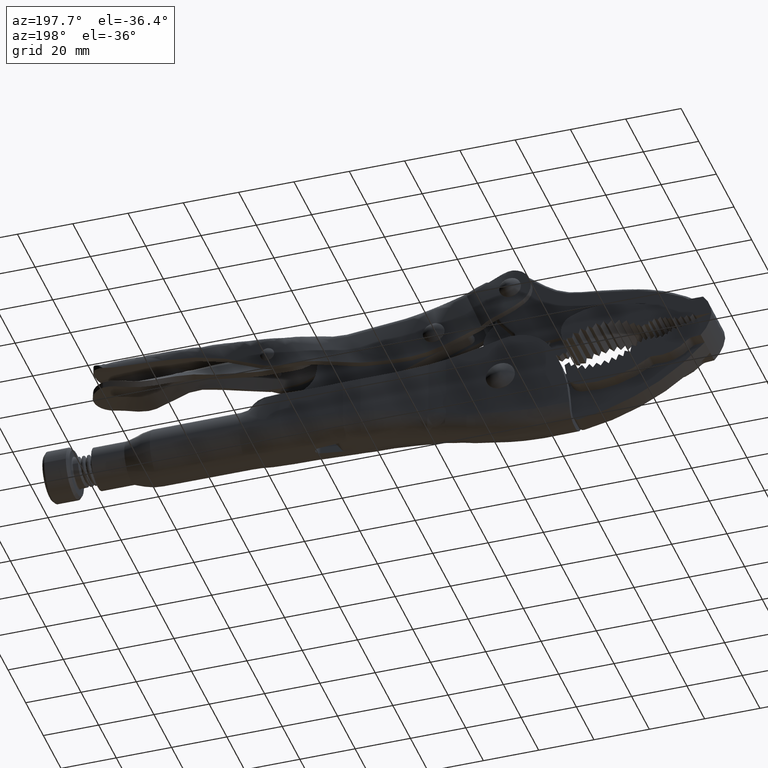
[diagram: clean part render]
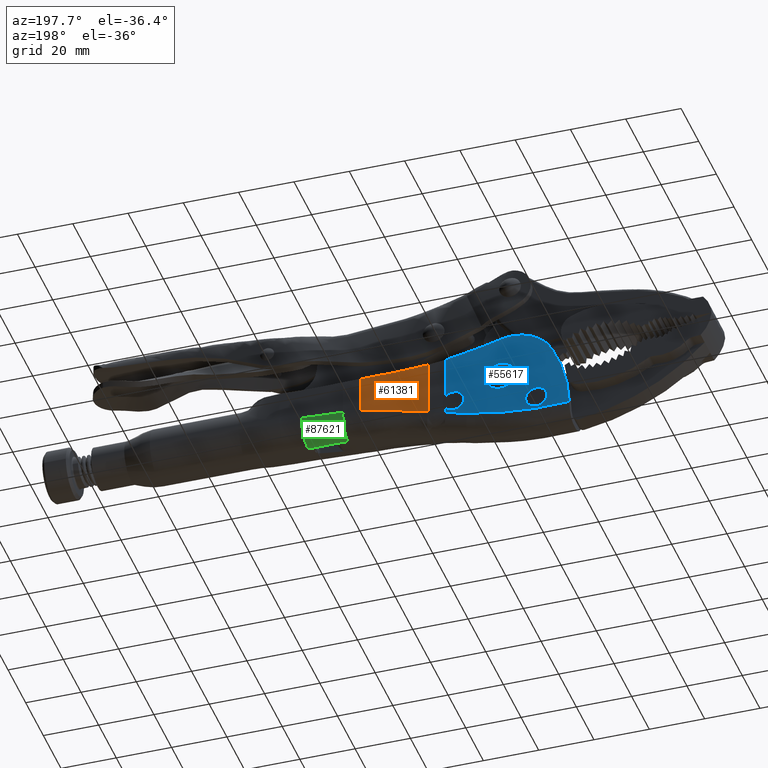
[diagram: same view with three faces highlighted in distinct colors, each labeled with its STEP entity id]
A machine part, auxiliary view with three faces highlighted in distinct colors.
Their STEP definitions:

[orange] entity #61381 — the highlighted planar face has unit normal (-0.1044, 0.9945, 0).
#275 = FACE_OUTER_BOUND ( 'NONE', #40014, .T. ) ;
#1554 = CARTESIAN_POINT ( 'NONE',  ( 23.33300534456490300, -2.821960002283147700, 11.91042269929703300 ) ) ;
#2295 = CARTESIAN_POINT ( 'NONE',  ( 47.08462443567221800, -0.3280399977168777500, -4.241368311889750100 ) ) ;
#2640 = CARTESIAN_POINT ( 'NONE',  ( 35.16337373062243900, -1.579771321747104300, -5.903930813620142700 ) ) ;
#2977 = CARTESIAN_POINT ( 'NONE',  ( 24.55078055257113000, -2.694093605442491800, -7.925767322514553300 ) ) ;
#4300 = B_SPLINE_CURVE_WITH_KNOTS ( 'NONE', 3,
 ( #2295, #10036, #63581, #17790, #71208, #25589, #78821, #33284, #86487, #40961, #94128, #48619, #2640, #56306, #10369, #63909, #18121, #71544, #25924, #79151, #33618, #86819, #41286, #94460, #48954, #2977, #56632 ),
 .UNSPECIFIED., .F., .F.,
 ( 4, 1, 1, 1, 1, 1, 1, 1, 1, 1, 2, 2, 1, 1, 1, 1, 1, 1, 2, 2, 4 ),
 ( 0.0000000000000000000, 0.2500000000000480200, 0.3750000000000724400, 0.4375000000000842700, 0.4687500000000905400, 0.4843750000000936500, 0.4921875000000955900, 0.4960937500000965300, 0.4980468750000970300, 0.4990234375000969800, 0.4995117187500972600, 0.5000000000000975900, 0.6250000000000791600, 0.6875000000000699400, 0.7187500000000651700, 0.7343750000000628400, 0.7421875000000617300, 0.7460937500000611700, 0.7480468750000606200, 0.7500000000000600600, 1.000000000000000000 ),
 .UNSPECIFIED. ) ;
#4682 = DIRECTION ( 'NONE',  ( 0.0000000000000000000, 0.0000000000000000000, 1.000000000000000000 ) ) ;
#6311 = DIRECTION ( 'NONE',  ( -0.0000000000000000000, -0.0000000000000000000, 1.000000000000000000 ) ) ;
#10036 = CARTESIAN_POINT ( 'NONE',  ( 45.40405500301074700, -0.5044997881463322300, -4.382012033440275000 ) ) ;
#10369 = CARTESIAN_POINT ( 'NONE',  ( 34.45912282788517400, -1.653717666534517900, -6.030932656573908100 ) ) ;
#11819 = VERTEX_POINT ( 'NONE', #45478 ) ;
#16055 = EDGE_CURVE ( 'NONE', #95406, #30284, #4300, .T. ) ;
#16863 = ORIENTED_EDGE ( 'NONE', *, *, #60314, .T. ) ;
#17790 = CARTESIAN_POINT ( 'NONE',  ( 39.03804040862679200, -1.172931320556648100, -5.240717866743406900 ) ) ;
#18121 = CARTESIAN_POINT ( 'NONE',  ( 31.34511554587900100, -1.980688431145165600, -6.617679173407554800 ) ) ;
#25589 = CARTESIAN_POINT ( 'NONE',  ( 36.15056303759552500, -1.476116444514930400, -5.728125237442912800 ) ) ;
#25924 = CARTESIAN_POINT ( 'NONE',  ( 29.78839414435670100, -2.144144178305008400, -6.917396473906395100 ) ) ;
#27898 = EDGE_CURVE ( 'NONE', #42547, #11819, #38474, .T. ) ;
#30284 = VERTEX_POINT ( 'NONE', #62268 ) ;
#31882 = DIRECTION ( 'NONE',  ( -0.1044259300039956900, 0.9945326667047195100, 0.0000000000000000000 ) ) ;
#33284 = CARTESIAN_POINT ( 'NONE',  ( 35.40502251460636500, -1.554398199428791600, -5.860491402554045800 ) ) ;
#33618 = CARTESIAN_POINT ( 'NONE',  ( 29.37684699955938700, -2.187356628508726700, -6.997018508155594700 ) ) ;
#34111 = VECTOR ( 'NONE', #6311, 1000.000000000000000 ) ;
#37344 = ORIENTED_EDGE ( 'NONE', *, *, #27898, .T. ) ;
#38474 =( BOUNDED_CURVE ( )  B_SPLINE_CURVE ( 3, ( #1554, #47564, #85749, #40239 ),
 .UNSPECIFIED., .F., .F. ) 
 B_SPLINE_CURVE_WITH_KNOTS ( ( 4, 4 ),
 ( 4.564045530001355800, 4.654184894257325000 ),
 .UNSPECIFIED. ) 
 CURVE ( )  GEOMETRIC_REPRESENTATION_ITEM ( )  RATIONAL_B_SPLINE_CURVE ( ( 1.000000000000000000, 0.9993230225232894200, 0.9993230225232894200, 1.000000000000000000 ) ) 
 REPRESENTATION_ITEM ( '' )  );
#39756 = CARTESIAN_POINT ( 'NONE',  ( 47.08462443567221800, -0.3280399977168777500, -4.241368311889750100 ) ) ;
#40014 = EDGE_LOOP ( 'NONE', ( #16863, #37344, #97999, #42137 ) ) ;
#40239 = CARTESIAN_POINT ( 'NONE',  ( 47.08462443567239600, -0.3280399977168616500, 9.448745615881105000 ) ) ;
#40746 = EDGE_CURVE ( 'NONE', #95406, #11819, #94791, .T. ) ;
#40961 = CARTESIAN_POINT ( 'NONE',  ( 35.21715793509462600, -1.574123980277525100, -5.894240088984108000 ) ) ;
#41286 = CARTESIAN_POINT ( 'NONE',  ( 29.27754597874506400, -2.197783235694228400, -7.016251738909531400 ) ) ;
#42137 = ORIENTED_EDGE ( 'NONE', *, *, #16055, .T. ) ;
#42547 = VERTEX_POINT ( 'NONE', #63083 ) ;
#45478 = CARTESIAN_POINT ( 'NONE',  ( 47.08462443567239600, -0.3280399977168616500, 9.448745615881105000 ) ) ;
#47564 = CARTESIAN_POINT ( 'NONE',  ( 31.21053514733688400, -1.994819372992087300, 10.73319478027445600 ) ) ;
#48619 = CARTESIAN_POINT ( 'NONE',  ( 35.17234079796248400, -1.578829779676398800, -5.902314345526058900 ) ) ;
#48954 = CARTESIAN_POINT ( 'NONE',  ( 26.51900425720169700, -2.487430116456283100, -7.550748182686591600 ) ) ;
#50090 = AXIS2_PLACEMENT_3D ( 'NONE', #77433, #31882, #85077 ) ;
#52521 = VECTOR ( 'NONE', #4682, 1000.000000000000000 ) ;
#54899 = LINE ( 'NONE', #96139, #52521 ) ;
#56306 = CARTESIAN_POINT ( 'NONE',  ( 35.15712084763600800, -1.580427874460679900, -5.905058280465258500 ) ) ;
#56632 = CARTESIAN_POINT ( 'NONE',  ( 23.33300534456491300, -2.821960002283144100, -8.149033735422483100 ) ) ;
#59919 = CARTESIAN_POINT ( 'NONE',  ( 47.08462443567237400, -0.3280399977168627100, 29.00000000000002500 ) ) ;
#60314 = EDGE_CURVE ( 'NONE', #30284, #42547, #54899, .T. ) ;
#61381 = ADVANCED_FACE ( 'NONE', ( #275 ), #62191, .T. ) ;
#62191 = PLANE ( 'NONE',  #50090 ) ;
#62268 = CARTESIAN_POINT ( 'NONE',  ( 23.33300534456491300, -2.821960002283144100, -8.149033735422483100 ) ) ;
#63083 = CARTESIAN_POINT ( 'NONE',  ( 23.33300534456490300, -2.821960002283147700, 11.91042269929703300 ) ) ;
#63581 = CARTESIAN_POINT ( 'NONE',  ( 42.65235048680967400, -0.7934287623474434200, -4.695517293620664400 ) ) ;
#63909 = CARTESIAN_POINT ( 'NONE',  ( 33.19807021682650100, -1.786128190695678100, -6.264774632470514200 ) ) ;
#71208 = CARTESIAN_POINT ( 'NONE',  ( 37.12988833388156000, -1.373287288404895900, -5.558179262366163400 ) ) ;
#71544 = CARTESIAN_POINT ( 'NONE',  ( 30.32320655422714900, -2.087988875268611100, -6.814153669473832900 ) ) ;
#77433 = CARTESIAN_POINT ( 'NONE',  ( 23.33300534456491300, -2.821960002283146400, 29.00000000000002500 ) ) ;
#78821 = CARTESIAN_POINT ( 'NONE',  ( 35.65458807472414500, -1.528193815616425600, -5.815902044297621000 ) ) ;
#79151 = CARTESIAN_POINT ( 'NONE',  ( 29.51502346091033100, -2.172848100066875800, -6.970269265222555100 ) ) ;
#85077 = DIRECTION ( 'NONE',  ( -0.9945326667047194000, -0.1044259300039956800, 0.0000000000000000000 ) ) ;
#85749 = CARTESIAN_POINT ( 'NONE',  ( 39.13310491232788700, -1.162949547668030300, 9.912079876173299600 ) ) ;
#86487 = CARTESIAN_POINT ( 'NONE',  ( 35.27984521487695000, -1.567541815900380700, -5.882961320389543200 ) ) ;
#86819 = CARTESIAN_POINT ( 'NONE',  ( 29.31730899048873000, -2.193608119461145200, -7.008549508114385600 ) ) ;
#94128 = CARTESIAN_POINT ( 'NONE',  ( 35.18578963772403500, -1.577417651501436900, -5.899890425700583300 ) ) ;
#94460 = CARTESIAN_POINT ( 'NONE',  ( 29.25891608502886900, -2.199739374534429800, -7.019860910729634400 ) ) ;
#94791 = LINE ( 'NONE', #59919, #34111 ) ;
#95406 = VERTEX_POINT ( 'NONE', #39756 ) ;
#96139 = CARTESIAN_POINT ( 'NONE',  ( 23.33300534456487800, -2.821960002283149900, 29.00000000000002500 ) ) ;
#97999 = ORIENTED_EDGE ( 'NONE', *, *, #40746, .F. ) ;

[blue] entity #55617 — the highlighted planar face has unit normal (-0, 1, 0).
#641 = CARTESIAN_POINT ( 'NONE',  ( -2.599999999999993400, -3.150000000000000400, 1.600000000000000100 ) ) ;
#1070 = CARTESIAN_POINT ( 'NONE',  ( -2.599999999999993400, -3.150000000000000400, 1.600000000000000100 ) ) ;
#1599 = VECTOR ( 'NONE', #68944, 1000.000000000000000 ) ;
#2623 = CIRCLE ( 'NONE', #3178, 16.00000000000000000 ) ;
#2902 = DIRECTION ( 'NONE',  ( 0.0000000000000000000, 0.0000000000000000000, 1.000000000000000000 ) ) ;
#3178 = AXIS2_PLACEMENT_3D ( 'NONE', #5763, #59365, #13500 ) ;
#3397 = LINE ( 'NONE', #11410, #46641 ) ;
#4063 = LINE ( 'NONE', #71222, #1599 ) ;
#4235 = CARTESIAN_POINT ( 'NONE',  ( 17.06744954432484100, -3.150000000000003500, 12.92360627760200100 ) ) ;
#4808 = CARTESIAN_POINT ( 'NONE',  ( 9.302303847778370400, -3.150000000000000800, -11.71150684931502700 ) ) ;
#4839 = AXIS2_PLACEMENT_3D ( 'NONE', #1070, #54763, #8816 ) ;
#5131 = DIRECTION ( 'NONE',  ( 0.0000000000000000000, 0.0000000000000000000, 1.000000000000000000 ) ) ;
#5446 = EDGE_CURVE ( 'NONE', #66358, #57821, #4063, .T. ) ;
#5763 = CARTESIAN_POINT ( 'NONE',  ( -7.003305488079917900, -3.149999999999999900, 1.731216394110480100 ) ) ;
#5979 = ORIENTED_EDGE ( 'NONE', *, *, #58156, .T. ) ;
#8368 = ORIENTED_EDGE ( 'NONE', *, *, #63768, .T. ) ;
#8393 = DIRECTION ( 'NONE',  ( -1.000000000000000000, 0.0000000000000000000, 0.0000000000000000000 ) ) ;
#8405 = CARTESIAN_POINT ( 'NONE',  ( 9.302303847778370400, -3.150000000000000800, -11.71150684931502700 ) ) ;
#8816 = DIRECTION ( 'NONE',  ( -1.000000000000000000, 0.0000000000000000000, 0.0000000000000000000 ) ) ;
#10798 = ORIENTED_EDGE ( 'NONE', *, *, #38280, .T. ) ;
#11410 = CARTESIAN_POINT ( 'NONE',  ( 17.06744954432477400, -3.150000000000007000, 29.00000000000002500 ) ) ;
#11872 = CARTESIAN_POINT ( 'NONE',  ( 17.06744954432478800, -3.150000000000000400, -9.721062288670397700 ) ) ;
#12202 = CARTESIAN_POINT ( 'NONE',  ( 14.50184922595944700, -3.149999999999999000, -10.33383495504021700 ) ) ;
#13175 = CIRCLE ( 'NONE', #68665, 3.590192378848142700 ) ;
#13500 = DIRECTION ( 'NONE',  ( 0.0000000000000000000, 0.0000000000000000000, 1.000000000000000000 ) ) ;
#14104 = CARTESIAN_POINT ( 'NONE',  ( -2.809325234140083600, -3.149999999999999900, -14.09053335901527900 ) ) ;
#15349 = CIRCLE ( 'NONE', #64990, 54.00000000000024900 ) ;
#15363 = FACE_OUTER_BOUND ( 'NONE', #59048, .T. ) ;
#15624 = ORIENTED_EDGE ( 'NONE', *, *, #92601, .F. ) ;
#16369 = DIRECTION ( 'NONE',  ( -1.858644195959493800E-017, 1.000000000000000000, 0.0000000000000000000 ) ) ;
#18171 = CARTESIAN_POINT ( 'NONE',  ( -3.045821901569967700, -3.149999999999999900, 17.23406528270202300 ) ) ;
#19965 = CARTESIAN_POINT ( 'NONE',  ( 13.51946526984483500, -3.149999999999999900, -10.59271242796318700 ) ) ;
#20016 = EDGE_CURVE ( 'NONE', #49064, #85301, #3397, .T. ) ;
#20380 = CARTESIAN_POINT ( 'NONE',  ( -27.48478224137099300, -3.150000000000000800, -14.91809268985496000 ) ) ;
#21134 = CIRCLE ( 'NONE', #69554, 5.250000000000016900 ) ;
#21232 = CIRCLE ( 'NONE', #4839, 5.250000000000016900 ) ;
#21397 = EDGE_CURVE ( 'NONE', #78089, #41401, #15349, .T. ) ;
#21649 = ORIENTED_EDGE ( 'NONE', *, *, #51156, .F. ) ;
#21854 = CARTESIAN_POINT ( 'NONE',  ( -15.14351786978068200, -3.150000000000000400, -15.28572804492290300 ) ) ;
#22091 = DIRECTION ( 'NONE',  ( -1.858644195959493800E-017, 1.000000000000000000, 0.0000000000000000000 ) ) ;
#23918 = CARTESIAN_POINT ( 'NONE',  ( -7.003305488079917900, -3.149999999999999900, 17.73121639411048300 ) ) ;
#25073 = CARTESIAN_POINT ( 'NONE',  ( 17.06744954432477400, -3.150000000000007000, -2.997044685055343800 ) ) ;
#26530 = ORIENTED_EDGE ( 'NONE', *, *, #96387, .T. ) ;
#27434 = CARTESIAN_POINT ( 'NONE',  ( 16.56423910994420700, -3.150000000000001200, -9.828436206922806000 ) ) ;
#27757 = CARTESIAN_POINT ( 'NONE',  ( 13.26269149397626300, -3.149999999999999900, -10.66152725470839400 ) ) ;
#28120 = CARTESIAN_POINT ( 'NONE',  ( 26.49999999999999600, -3.149999999999999900, -16.19999999999999900 ) ) ;
#29607 = CARTESIAN_POINT ( 'NONE',  ( -27.48478224137099300, -3.150000000000000800, -14.91809268985496000 ) ) ;
#33210 = DIRECTION ( 'NONE',  ( -1.000000000000000000, -1.858644195959493800E-017, 0.0000000000000000000 ) ) ;
#33706 = ORIENTED_EDGE ( 'NONE', *, *, #5446, .T. ) ;
#35086 = CARTESIAN_POINT ( 'NONE',  ( 14.40000000000000400, -3.149999999999999900, -5.400000000000003000 ) ) ;
#35390 = DIRECTION ( 'NONE',  ( -1.858644195959493800E-017, 1.000000000000000000, 0.0000000000000000000 ) ) ;
#35432 = CARTESIAN_POINT ( 'NONE',  ( 13.20089397184915600, -3.150000000000000400, -10.67815388937734500 ) ) ;
#35672 = EDGE_CURVE ( 'NONE', #59337, #66358, #85507, .T. ) ;
#35795 = DIRECTION ( 'NONE',  ( 0.0000000000000000000, 0.0000000000000000000, 1.000000000000000000 ) ) ;
#38280 = EDGE_CURVE ( 'NONE', #83779, #59337, #84171, .T. ) ;
#39446 = AXIS2_PLACEMENT_3D ( 'NONE', #47546, #47872, #33210 ) ;
#41401 = VERTEX_POINT ( 'NONE', #62499 ) ;
#41833 = VERTEX_POINT ( 'NONE', #49515 ) ;
#42048 = ORIENTED_EDGE ( 'NONE', *, *, #72350, .F. ) ;
#42328 = EDGE_LOOP ( 'NONE', ( #15624, #78913 ) ) ;
#42764 = DIRECTION ( 'NONE',  ( -1.000000000000000000, 0.0000000000000000000, 0.0000000000000000000 ) ) ;
#43113 = CARTESIAN_POINT ( 'NONE',  ( 13.18416240506715700, -3.150000000000000400, -10.68265930976125600 ) ) ;
#44637 = CARTESIAN_POINT ( 'NONE',  ( 9.302303847778370400, -3.150000000000000800, -11.71150684931502700 ) ) ;
#45025 = EDGE_CURVE ( 'NONE', #83902, #60859, #49426, .T. ) ;
#45609 = CIRCLE ( 'NONE', #74402, 3.590192378848146200 ) ;
#46641 = VECTOR ( 'NONE', #72555, 1000.000000000000000 ) ;
#47546 = CARTESIAN_POINT ( 'NONE',  ( -29.59891833146132400, -3.150000000000000800, 29.00000000000002500 ) ) ;
#47872 = DIRECTION ( 'NONE',  ( -1.858644195959493800E-017, 1.000000000000000000, 0.0000000000000000000 ) ) ;
#48332 = EDGE_LOOP ( 'NONE', ( #77669, #21649 ) ) ;
#48881 = DIRECTION ( 'NONE',  ( 0.0000000000000000000, 1.000000000000000000, 0.0000000000000000000 ) ) ;
#49064 = VERTEX_POINT ( 'NONE', #91202 ) ;
#49426 = CIRCLE ( 'NONE', #50134, 3.590192378848146200 ) ;
#49515 = CARTESIAN_POINT ( 'NONE',  ( 0.9494931017620883400, -3.150000000000000400, -2.268281106711812700 ) ) ;
#49545 = VERTEX_POINT ( 'NONE', #8405 ) ;
#50134 = AXIS2_PLACEMENT_3D ( 'NONE', #67788, #22091, #75426 ) ;
#50780 = CARTESIAN_POINT ( 'NONE',  ( 9.822566855978024600, -3.149999999999998600, -11.58264221961300300 ) ) ;
#51110 = DIRECTION ( 'NONE',  ( -0.0000000000000000000, -1.000000000000000000, -0.0000000000000000000 ) ) ;
#51156 = EDGE_CURVE ( 'NONE', #60859, #83902, #45609, .T. ) ;
#52299 = CARTESIAN_POINT ( 'NONE',  ( 6.302613305726017900, -3.149999999999999900, -12.45420792024568600 ) ) ;
#53976 = ORIENTED_EDGE ( 'NONE', *, *, #76719, .F. ) ;
#54329 = DIRECTION ( 'NONE',  ( -1.858644195959493800E-017, 1.000000000000000000, 0.0000000000000000000 ) ) ;
#54763 = DIRECTION ( 'NONE',  ( -1.858644195959493800E-017, 1.000000000000000000, 0.0000000000000000000 ) ) ;
#55617 = ADVANCED_FACE ( 'NONE', ( #94124, #15363, #78654 ), #78749, .T. ) ;
#55666 = CARTESIAN_POINT ( 'NONE',  ( -17.20582907713616500, -3.150000000000000400, -13.61104255533359200 ) ) ;
#57821 = VERTEX_POINT ( 'NONE', #25073 ) ;
#58114 = CARTESIAN_POINT ( 'NONE',  ( 15.70041342290581800, -3.149999999999999500, -10.02943755590919200 ) ) ;
#58156 = EDGE_CURVE ( 'NONE', #85301, #49545, #98805, .T. ) ;
#59048 = EDGE_LOOP ( 'NONE', ( #42048, #82449, #5979, #26530, #67031, #8368, #10798, #71800, #33706, #53976 ) ) ;
#59337 = VERTEX_POINT ( 'NONE', #18171 ) ;
#59365 = DIRECTION ( 'NONE',  ( 0.0000000000000000000, 1.000000000000000000, 0.0000000000000000000 ) ) ;
#59396 = B_SPLINE_CURVE_WITH_KNOTS ( 'NONE', 3,
 ( #44637, #52299, #59952, #14104, #67554, #21854, #75193, #29607 ),
 .UNSPECIFIED., .F., .F.,
 ( 4, 2, 2, 4 ),
 ( 0.0000000000000000000, 0.2500000000000000000, 0.5000000000000000000, 1.000000000000000000 ),
 .UNSPECIFIED. ) ;
#59952 = CARTESIAN_POINT ( 'NONE',  ( 3.280349380931850200, -3.150000000000000800, -13.07855343637187700 ) ) ;
#60859 = VERTEX_POINT ( 'NONE', #83760 ) ;
#62188 = CARTESIAN_POINT ( 'NONE',  ( 14.40000000000000400, -3.149999999999999900, -5.400000000000003000 ) ) ;
#62499 = CARTESIAN_POINT ( 'NONE',  ( -21.10996043042923300, -3.149999999999999900, 9.281202244262186000 ) ) ;
#63171 = CARTESIAN_POINT ( 'NONE',  ( -6.149493101762073100, -3.150000000000000400, 5.468281106711813800 ) ) ;
#63768 = EDGE_CURVE ( 'NONE', #41401, #83779, #2623, .T. ) ;
#64911 = AXIS2_PLACEMENT_3D ( 'NONE', #62188, #16369, #69794 ) ;
#64990 = AXIS2_PLACEMENT_3D ( 'NONE', #28120, #81329, #35795 ) ;
#65719 = CARTESIAN_POINT ( 'NONE',  ( 13.85487523696923300, -3.150000000000001200, -10.50350761093414100 ) ) ;
#65886 = VERTEX_POINT ( 'NONE', #63171 ) ;
#66358 = VERTEX_POINT ( 'NONE', #4235 ) ;
#67031 = ORIENTED_EDGE ( 'NONE', *, *, #21397, .T. ) ;
#67554 = CARTESIAN_POINT ( 'NONE',  ( -5.878321061265792100, -3.149999999999999900, -14.47830590340639600 ) ) ;
#67788 = CARTESIAN_POINT ( 'NONE',  ( -15.60000000000000000, -3.150000000000000400, -10.39999999999999700 ) ) ;
#68665 = AXIS2_PLACEMENT_3D ( 'NONE', #35086, #88289, #42764 ) ;
#68944 = DIRECTION ( 'NONE',  ( 0.0000000000000000000, 0.0000000000000000000, -1.000000000000000000 ) ) ;
#69554 = AXIS2_PLACEMENT_3D ( 'NONE', #641, #54329, #8393 ) ;
#69794 = DIRECTION ( 'NONE',  ( -1.000000000000000000, 0.0000000000000000000, 0.0000000000000000000 ) ) ;
#70380 = CIRCLE ( 'NONE', #64911, 3.590192378848142700 ) ;
#71222 = CARTESIAN_POINT ( 'NONE',  ( 17.06744954432477400, -3.150000000000007000, 29.00000000000002500 ) ) ;
#71800 = ORIENTED_EDGE ( 'NONE', *, *, #35672, .T. ) ;
#72078 = VERTEX_POINT ( 'NONE', #79641 ) ;
#72350 = EDGE_CURVE ( 'NONE', #49064, #72078, #13175, .T. ) ;
#72555 = DIRECTION ( 'NONE',  ( 0.0000000000000000000, 0.0000000000000000000, -1.000000000000000000 ) ) ;
#73339 = CARTESIAN_POINT ( 'NONE',  ( 13.34877954312533200, -3.149999999999999000, -10.63840695874824000 ) ) ;
#73545 = AXIS2_PLACEMENT_3D ( 'NONE', #94388, #48881, #2902 ) ;
#74402 = AXIS2_PLACEMENT_3D ( 'NONE', #80928, #35390, #88588 ) ;
#75193 = CARTESIAN_POINT ( 'NONE',  ( -21.31620528442513800, -3.150000000000000800, -15.34261006912615100 ) ) ;
#75426 = DIRECTION ( 'NONE',  ( -1.000000000000000000, 0.0000000000000000000, 0.0000000000000000000 ) ) ;
#76719 = EDGE_CURVE ( 'NONE', #72078, #57821, #70380, .T. ) ;
#77669 = ORIENTED_EDGE ( 'NONE', *, *, #45025, .F. ) ;
#78089 = VERTEX_POINT ( 'NONE', #20380 ) ;
#78654 = FACE_BOUND ( 'NONE', #42328, .T. ) ;
#78749 = PLANE ( 'NONE',  #39446 ) ;
#78913 = ORIENTED_EDGE ( 'NONE', *, *, #89974, .F. ) ;
#79513 = CARTESIAN_POINT ( 'NONE',  ( 17.06744954432478800, -3.150000000000000400, -9.721062288670397700 ) ) ;
#79641 = CARTESIAN_POINT ( 'NONE',  ( 10.93179562751028800, -3.149999999999999900, -6.327922274645081800 ) ) ;
#80928 = CARTESIAN_POINT ( 'NONE',  ( -15.60000000000000000, -3.150000000000000400, -10.39999999999999700 ) ) ;
#80973 = CARTESIAN_POINT ( 'NONE',  ( 13.21946117295437200, -3.150000000000000400, -10.67315566033038700 ) ) ;
#81329 = DIRECTION ( 'NONE',  ( 0.0000000000000000000, 1.000000000000000000, 0.0000000000000000000 ) ) ;
#82449 = ORIENTED_EDGE ( 'NONE', *, *, #20016, .T. ) ;
#83760 = CARTESIAN_POINT ( 'NONE',  ( -13.99417092286383400, -3.150000000000000400, -7.188957444666398200 ) ) ;
#83779 = VERTEX_POINT ( 'NONE', #23918 ) ;
#83902 = VERTEX_POINT ( 'NONE', #55666 ) ;
#84171 = CIRCLE ( 'NONE', #73545, 16.00000000000000000 ) ;
#84284 = AXIS2_PLACEMENT_3D ( 'NONE', #96588, #51110, #5131 ) ;
#85301 = VERTEX_POINT ( 'NONE', #79513 ) ;
#85507 = CIRCLE ( 'NONE', #84284, 265.0000000000001100 ) ;
#88289 = DIRECTION ( 'NONE',  ( -1.858644195959493800E-017, 1.000000000000000000, 0.0000000000000000000 ) ) ;
#88588 = DIRECTION ( 'NONE',  ( -1.000000000000000000, 0.0000000000000000000, 0.0000000000000000000 ) ) ;
#88628 = CARTESIAN_POINT ( 'NONE',  ( 13.18850696651959900, -3.149999999999999900, -10.68148929243922600 ) ) ;
#89974 = EDGE_CURVE ( 'NONE', #41833, #65886, #21232, .T. ) ;
#91202 = CARTESIAN_POINT ( 'NONE',  ( 17.06744954432480200, -3.150000000000010100, -7.802955314944666700 ) ) ;
#92601 = EDGE_CURVE ( 'NONE', #65886, #41833, #21134, .T. ) ;
#94124 = FACE_BOUND ( 'NONE', #48332, .T. ) ;
#94388 = CARTESIAN_POINT ( 'NONE',  ( -7.003305488079917900, -3.149999999999999900, 1.731216394110480100 ) ) ;
#96275 = CARTESIAN_POINT ( 'NONE',  ( 11.11383445815221700, -3.149999999999999900, -11.24041646019032300 ) ) ;
#96387 = EDGE_CURVE ( 'NONE', #49545, #78089, #59396, .T. ) ;
#96588 = CARTESIAN_POINT ( 'NONE',  ( 62.50000000000004300, -3.149999999999999900, 274.0000000000000000 ) ) ;
#98805 = B_SPLINE_CURVE_WITH_KNOTS ( 'NONE', 3,
 ( #11872, #27434, #58114, #12202, #65719, #19965, #73339, #27757, #80973, #35432, #88628, #43113, #96275, #50780, #4808 ),
 .UNSPECIFIED., .F., .F.,
 ( 4, 1, 1, 1, 1, 1, 1, 1, 2, 2, 4 ),
 ( 0.0000000000000000000, 0.2500000000000056100, 0.3750000000000077200, 0.4375000000000091000, 0.4687500000000097700, 0.4843750000000098800, 0.4921875000000099400, 0.4960937500000098800, 0.4980468750000098800, 0.5000000000000098800, 1.000000000000000000 ),
 .UNSPECIFIED. ) ;

[green] entity #87621 — the highlighted face is a freeform B-spline surface patch.
#70 = CARTESIAN_POINT ( 'NONE',  ( 68.42975549948826600, -7.820627925198864200, -10.50000000000000900 ) ) ;
#408 = CARTESIAN_POINT ( 'NONE',  ( 53.34702885925448600, -8.612285643216700000E-016, -3.599434805783150900 ) ) ;
#1117 = ORIENTED_EDGE ( 'NONE', *, *, #59622, .F. ) ;
#1676 = CARTESIAN_POINT ( 'NONE',  ( 68.42975549948823800, -7.765170795440930400, -10.49999999999999800 ) ) ;
#2278 = B_SPLINE_CURVE_WITH_KNOTS ( 'NONE', 3,
 ( #32612, #40298, #93456, #47947 ),
 .UNSPECIFIED., .F., .F.,
 ( 4, 4 ),
 ( 0.0000000000000000000, 1.000000000000000000 ),
 .UNSPECIFIED. ) ;
#3466 = CARTESIAN_POINT ( 'NONE',  ( 57.27168752889000600, -0.0000000000000000000, -3.366056553170520400 ) ) ;
#3798 = CARTESIAN_POINT ( 'NONE',  ( 53.35018023591223400, -6.443258625056711200E-015, -3.651022074881282700 ) ) ;
#4101 = CARTESIAN_POINT ( 'NONE',  ( 53.79585219685696300, -7.309141547185063800, -10.94656363531490400 ) ) ;
#4703 = CARTESIAN_POINT ( 'NONE',  ( 67.11109332845146000, -0.0000000000000000000, -2.749195352996126400 ) ) ;
#5032 = CARTESIAN_POINT ( 'NONE',  ( 64.69527265387840500, -0.0000000000000000000, -2.836272074001478800 ) ) ;
#5362 = CARTESIAN_POINT ( 'NONE',  ( 60.88633239331726800, -0.0000000000000000000, -3.077524811616698700 ) ) ;
#7833 = CARTESIAN_POINT ( 'NONE',  ( 58.66776774934528800, -7.309141550008858300, -10.64894677714900000 ) ) ;
#7875 = B_SPLINE_CURVE_WITH_KNOTS ( 'NONE', 3,
 ( #1676, #62984, #70596, #24971 ),
 .UNSPECIFIED., .F., .F.,
 ( 4, 4 ),
 ( 0.0000000000000000000, 1.000000000000000000 ),
 .UNSPECIFIED. ) ;
#8157 = CARTESIAN_POINT ( 'NONE',  ( 63.38570900479907500, 1.197440222002117900E-013, -2.679921158167312800 ) ) ;
#8748 = VERTEX_POINT ( 'NONE', #75837 ) ;
#10861 = CARTESIAN_POINT ( 'NONE',  ( 59.13185581688856700, -0.0000000000000000000, -3.217879864619166000 ) ) ;
#11194 = CARTESIAN_POINT ( 'NONE',  ( 57.16213177190426400, -0.0000000000000000000, -3.374734514449848600 ) ) ;
#12426 = CARTESIAN_POINT ( 'NONE',  ( 66.68724049799362800, -0.0000000000000000000, -2.759820723616766900 ) ) ;
#12770 = CARTESIAN_POINT ( 'NONE',  ( 64.05374986327396400, 0.0000000000000000000, -2.867671949104759300 ) ) ;
#13102 = CARTESIAN_POINT ( 'NONE',  ( 60.86389793614946300, 0.0000000000000000000, -3.079247896715798100 ) ) ;
#15259 = CARTESIAN_POINT ( 'NONE',  ( 53.35018023591223400, -6.443258625056711200E-015, -3.651022074881282700 ) ) ;
#15579 = CARTESIAN_POINT ( 'NONE',  ( 68.42975549948826600, -7.765170795440930400, -10.50000000000000900 ) ) ;
#15897 = EDGE_CURVE ( 'NONE', #19134, #29487, #2278, .T. ) ;
#15906 = CARTESIAN_POINT ( 'NONE',  ( 53.34387748259679500, -8.550953906549364600E-016, -3.547847536685042200 ) ) ;
#16773 = ORIENTED_EDGE ( 'NONE', *, *, #69415, .T. ) ;
#18623 = CARTESIAN_POINT ( 'NONE',  ( 59.03403124182230500, -0.0000000000000000000, -3.225716909355989000 ) ) ;
#18956 = CARTESIAN_POINT ( 'NONE',  ( 57.13080272684001700, 0.0000000000000000000, -3.377215503782807500 ) ) ;
#19134 = VERTEX_POINT ( 'NONE', #66632 ) ;
#19946 = CARTESIAN_POINT ( 'NONE',  ( 68.42975549948825200, -7.765170795440929500, -2.734829204559067900 ) ) ;
#20184 = CARTESIAN_POINT ( 'NONE',  ( 66.58313923546575100, -0.0000000000000000000, -2.762718072942212700 ) ) ;
#20500 = CARTESIAN_POINT ( 'NONE',  ( 68.42975549948826600, -1.734723475976807100E-016, -2.734829204559075400 ) ) ;
#20525 = CARTESIAN_POINT ( 'NONE',  ( 62.02049169465993800, -0.0000000000000000000, -2.994070282451958100 ) ) ;
#20854 = CARTESIAN_POINT ( 'NONE',  ( 59.93587830136474500, -0.0000000000000000000, -3.153479437144402400 ) ) ;
#23345 = CARTESIAN_POINT ( 'NONE',  ( 58.66776774935703300, -1.734723475976807100E-015, -10.64894677720774800 ) ) ;
#23678 = CARTESIAN_POINT ( 'NONE',  ( 63.38456416976063000, 2.394880444004235700E-013, -2.625013108921970600 ) ) ;
#24971 = CARTESIAN_POINT ( 'NONE',  ( 56.40974639292811300, -7.352094892529247100, -10.80116279218614900 ) ) ;
#25404 = CARTESIAN_POINT ( 'NONE',  ( 59.25877223258523700, -0.0000000000000000000, -3.207712578843260800 ) ) ;
#26424 = CARTESIAN_POINT ( 'NONE',  ( 59.01040553327694500, -0.0000000000000000000, -3.227609679769798800 ) ) ;
#26747 = CARTESIAN_POINT ( 'NONE',  ( 56.16615432214003100, -0.0000000000000000000, -3.453070881328685900 ) ) ;
#27093 = CARTESIAN_POINT ( 'NONE',  ( 53.35018023591223400, -6.443258625056711200E-015, -3.651022074881282700 ) ) ;
#27652 = CARTESIAN_POINT ( 'NONE',  ( 67.70314035438613600, -0.0000000000000000000, -2.739561881867518700 ) ) ;
#27741 = DIRECTION ( 'NONE',  ( 1.787183846099348700E-015, 0.0000000000000000000, -1.000000000000000000 ) ) ;
#27977 = CARTESIAN_POINT ( 'NONE',  ( 66.55045226551465000, 0.0000000000000000000, -2.763648218271011400 ) ) ;
#28312 = CARTESIAN_POINT ( 'NONE',  ( 61.17026931045444400, -0.0000000000000000000, -3.055945218565035300 ) ) ;
#29487 = VERTEX_POINT ( 'NONE', #4101 ) ;
#30424 = CARTESIAN_POINT ( 'NONE',  ( 53.79585219685697000, -1.734723475976807100E-015, -10.94656363531488500 ) ) ;
#30750 = CARTESIAN_POINT ( 'NONE',  ( 63.54875796365194400, -7.876085052079533400, -10.49999999999952700 ) ) ;
#31087 = CARTESIAN_POINT ( 'NONE',  ( 68.42975549948825200, 0.0000000000000000000, -10.50000000000001100 ) ) ;
#31250 = CIRCLE ( 'NONE', #73783, 7.765170795440927700 ) ;
#32612 = CARTESIAN_POINT ( 'NONE',  ( 56.40974639292811300, -7.352094892529247100, -10.80116279218614900 ) ) ;
#34097 = CARTESIAN_POINT ( 'NONE',  ( 59.00199054175815400, 0.0000000000000000000, -3.228283848968529900 ) ) ;
#34433 = CARTESIAN_POINT ( 'NONE',  ( 55.46800288628160300, -0.0000000000000000000, -3.505958854761648300 ) ) ;
#35317 = CARTESIAN_POINT ( 'NONE',  ( 67.53620045940340300, -0.0000000000000000000, -2.741700336321255500 ) ) ;
#35650 = CARTESIAN_POINT ( 'NONE',  ( 65.78542179752577100, -0.0000000000000000000, -2.788152246040868800 ) ) ;
#35985 = CARTESIAN_POINT ( 'NONE',  ( 60.95553799195609200, -0.0000000000000000000, -3.072223670304561300 ) ) ;
#38443 = CARTESIAN_POINT ( 'NONE',  ( 53.79585219685697000, -7.361341817066990400, -10.94656363531488600 ) ) ;
#38772 = CARTESIAN_POINT ( 'NONE',  ( 58.36649615293124800, -5.629574059636738800E-015, -3.344584046513416500 ) ) ;
#40298 = CARTESIAN_POINT ( 'NONE',  ( 55.53857374611965300, -7.323776188545075200, -10.84487570835198000 ) ) ;
#41779 = CARTESIAN_POINT ( 'NONE',  ( 58.28627404918037800, -0.0000000000000000000, -3.285499857556334600 ) ) ;
#42051 = ORIENTED_EDGE ( 'NONE', *, *, #72390, .F. ) ;
#42105 = CARTESIAN_POINT ( 'NONE',  ( 55.28790268582943000, 0.0000000000000000000, -3.519266567707071100 ) ) ;
#43002 = CARTESIAN_POINT ( 'NONE',  ( 67.49962803650663500, -0.0000000000000000000, -2.742246899039043800 ) ) ;
#43329 = CARTESIAN_POINT ( 'NONE',  ( 64.94245131683756300, -0.0000000000000000000, -2.824493973885309700 ) ) ;
#43659 = CARTESIAN_POINT ( 'NONE',  ( 60.90171917967856500, -0.0000000000000000000, -3.076343890596396700 ) ) ;
#43888 = VERTEX_POINT ( 'NONE', #27093 ) ;
#45275 =( BOUNDED_SURFACE ( )  B_SPLINE_SURFACE ( 2, 3, ( 
 ( #83636, #53443, #30750, #83954 ),
 ( #38443, #91625, #46107, #70 ),
 ( #53776, #7833, #61407, #15579 ),
 ( #69032, #23345, #76659, #31087 ),
 ( #84297, #38772, #91952, #46442 ),
 ( #408, #54096, #8157, #61741 ),
 ( #15906, #69346, #23678, #76982 ) ),
 .UNSPECIFIED., .F., .F., .T. ) 
 B_SPLINE_SURFACE_WITH_KNOTS ( ( 3, 2, 2, 3 ),
 ( 4, 4 ),
 ( -0.01010000000000000000, 0.0000000000000000000, 1.000000000000000000, 1.010000000000000000 ),
 ( -0.06101244337171962700, 1.156482317317871500E-016 ),
 .UNSPECIFIED. ) 
 GEOMETRIC_REPRESENTATION_ITEM ( )  RATIONAL_B_SPLINE_SURFACE ( (
 ( 1.000000000000000000, 1.000000000000000000, 1.000000000000000000, 1.000000000000000000),
 ( 1.000000000000000000, 1.000000000000000000, 1.000000000000000000, 1.000000000000000000),
 ( 1.000000000000000000, 1.000000000000000000, 1.000000000000000000, 1.000000000000000000),
 ( 0.7071067811865475700, 0.7071067811865475700, 0.7071067811865475700, 0.7071067811865475700),
 ( 1.000000000000000000, 1.000000000000000000, 1.000000000000000000, 1.000000000000000000),
 ( 1.000000000000000000, 1.000000000000000000, 1.000000000000000000, 1.000000000000000000),
 ( 1.000000000000000000, 1.000000000000000000, 1.000000000000000000, 1.000000000000000000) ) ) 
 REPRESENTATION_ITEM ( '' )  SURFACE ( )  );
#45786 = CARTESIAN_POINT ( 'NONE',  ( 53.79585219685696300, -7.309141547185063800, -10.94656363531490400 ) ) ;
#46107 = CARTESIAN_POINT ( 'NONE',  ( 63.54875796365188000, -7.820627922341978800, -10.49999999999976900 ) ) ;
#46442 = CARTESIAN_POINT ( 'NONE',  ( 68.42975549948826600, 0.0000000000000000000, -2.734829204559079000 ) ) ;
#47947 = CARTESIAN_POINT ( 'NONE',  ( 53.79585219685696300, -7.309141547185063800, -10.94656363531490400 ) ) ;
#48290 =( BOUNDED_CURVE ( )  B_SPLINE_CURVE ( 2, ( #45786, #30424, #15259 ),
 .UNSPECIFIED., .F., .T. ) 
 B_SPLINE_CURVE_WITH_KNOTS ( ( 3, 3 ),
 ( 0.0000000000000000000, 1.000000000000000000 ),
 .UNSPECIFIED. ) 
 CURVE ( )  GEOMETRIC_REPRESENTATION_ITEM ( )  RATIONAL_B_SPLINE_CURVE ( ( 1.000000000000000000, 0.7071067811865475700, 1.000000000000000000 ) ) 
 REPRESENTATION_ITEM ( '' )  );
#49433 = CARTESIAN_POINT ( 'NONE',  ( 57.42318156972697100, -0.0000000000000000000, -3.354050553666886100 ) ) ;
#49768 = CARTESIAN_POINT ( 'NONE',  ( 54.18096931684080200, -0.0000000000000000000, -3.596723837727290100 ) ) ;
#50348 = CARTESIAN_POINT ( 'NONE',  ( 68.42975549948826600, -1.734723475976807100E-016, -2.734829204559075400 ) ) ;
#50672 = CARTESIAN_POINT ( 'NONE',  ( 67.33893524420848600, 0.0000000000000000000, -2.744781158597156400 ) ) ;
#51002 = CARTESIAN_POINT ( 'NONE',  ( 64.73664588020936600, -0.0000000000000000000, -2.834270104857425900 ) ) ;
#51329 = CARTESIAN_POINT ( 'NONE',  ( 60.88889713651121800, -0.0000000000000000000, -3.077327887688178000 ) ) ;
#53443 = CARTESIAN_POINT ( 'NONE',  ( 58.66776774934512400, -7.413542089813064200, -10.64894677714816000 ) ) ;
#53776 = CARTESIAN_POINT ( 'NONE',  ( 53.79585219685697000, -7.309141547185054000, -10.94656363531488600 ) ) ;
#54096 = CARTESIAN_POINT ( 'NONE',  ( 58.36436584104313100, -5.657114812230882100E-015, -3.292934402322214000 ) ) ;
#57118 = CARTESIAN_POINT ( 'NONE',  ( 57.19512136980051800, -0.0000000000000000000, -3.372121790438608700 ) ) ;
#58329 = CARTESIAN_POINT ( 'NONE',  ( 66.83091805842079200, -0.0000000000000000000, -2.756002692417272000 ) ) ;
#58649 = CARTESIAN_POINT ( 'NONE',  ( 64.67254824577813100, 0.0000000000000000000, -2.837378682939212900 ) ) ;
#58964 = CARTESIAN_POINT ( 'NONE',  ( 60.88384510367700400, 0.0000000000000000000, -3.077715834460337300 ) ) ;
#59622 = EDGE_CURVE ( 'NONE', #74496, #43888, #60965, .T. ) ;
#59922 = ORIENTED_EDGE ( 'NONE', *, *, #78706, .T. ) ;
#60965 = B_SPLINE_CURVE_WITH_KNOTS ( 'NONE', 3,
 ( #50348, #95828, #73224, #27652, #80861, #35317, #88518, #43002, #96160, #50672, #4703, #58329, #12426, #65928, #20184, #73565, #27977, #81191, #35650, #88844, #43329, #96486, #51002, #5032, #58649, #12770, #66250, #20525, #73895, #28312, #81509, #35985, #89175, #43659, #96806, #51329, #5362, #58964, #13102, #66583, #20854, #74213, #25404, #10861, #64403, #18623, #72020, #26424, #79643, #34097, #87304, #41779, #94947, #49433, #3466, #57118, #11194, #64730, #18956, #72354, #26747, #79974, #34433, #87640, #42105, #95265, #49768, #3798 ),
 .UNSPECIFIED., .F., .F.,
 ( 4, 1, 1, 1, 1, 2, 2, 1, 1, 1, 1, 2, 2, 1, 1, 1, 1, 2, 2, 1, 1, 1, 1, 1, 1, 1, 1, 1, 2, 2, 1, 1, 1, 1, 1, 1, 1, 1, 2, 2, 1, 1, 1, 1, 1, 2, 2, 1, 1, 2, 2, 4 ),
 ( 0.0000000000000000000, 0.03125000000085453200, 0.04687500000128042000, 0.05468750000149336800, 0.05859375000159983800, 0.06054687500165489800, 0.06250000000170995200, 0.09375000000259682600, 0.1093750000030388700, 0.1171875000032585700, 0.1210937500033671100, 0.1230468750034213900, 0.1250000000034756600, 0.1875000000052298400, 0.2187500000061055300, 0.2343750000065434000, 0.2421875000067623400, 0.2460937500068731400, 0.2500000000069839100, 0.3750000000105404000, 0.4375000000123199200, 0.4687500000132097100, 0.4843750000136539700, 0.4921875000138761200, 0.4960937500139871400, 0.4980468750140426600, 0.4990234375140704100, 0.4995117187640849000, 0.4997558593890915600, 0.5000000000140981700, 0.5625000000124454900, 0.5937500000116191500, 0.6093750000112063700, 0.6171875000110005300, 0.6210937500108975100, 0.6230468750108456600, 0.6240234375108196800, 0.6245117187608066900, 0.6247558593858003600, 0.6250000000107939200, 0.6875000000089992500, 0.7187500000081019600, 0.7343750000076538800, 0.7421875000074298300, 0.7460937500073184800, 0.7480468750072627500, 0.7500000000072070100, 0.8125000000054067900, 0.8437500000045060600, 0.8593750000040548700, 0.8750000000036035600, 1.000000000000000000 ),
 .UNSPECIFIED. ) ;
#61407 = CARTESIAN_POINT ( 'NONE',  ( 63.54875796365180900, -7.765170792604425100, -10.50000000000000900 ) ) ;
#61741 = CARTESIAN_POINT ( 'NONE',  ( 68.42975549948826600, 0.0000000000000000000, -2.679921155293798900 ) ) ;
#62984 = CARTESIAN_POINT ( 'NONE',  ( 64.42159772038856100, -7.765198255898269500, -10.50000000000000900 ) ) ;
#64403 = CARTESIAN_POINT ( 'NONE',  ( 59.06689060144373800, -0.0000000000000000000, -3.223084410595628700 ) ) ;
#64730 = CARTESIAN_POINT ( 'NONE',  ( 57.14009970003666400, -0.0000000000000000000, -3.376479294148591500 ) ) ;
#65928 = CARTESIAN_POINT ( 'NONE',  ( 66.61450423642703800, -0.0000000000000000000, -2.761833329588744100 ) ) ;
#66250 = CARTESIAN_POINT ( 'NONE',  ( 63.13246101457284700, -0.0000000000000000000, -2.919631557293256700 ) ) ;
#66583 = CARTESIAN_POINT ( 'NONE',  ( 60.61363992533579600, -0.0000000000000000000, -3.099223442763471100 ) ) ;
#66632 = CARTESIAN_POINT ( 'NONE',  ( 56.40974639292811300, -7.352094892529247100, -10.80116279218614900 ) ) ;
#67847 = FACE_OUTER_BOUND ( 'NONE', #93695, .T. ) ;
#69032 = CARTESIAN_POINT ( 'NONE',  ( 53.79585219685698400, -1.734723475976807100E-015, -10.94656363531488600 ) ) ;
#69346 = CARTESIAN_POINT ( 'NONE',  ( 58.36223552915501500, -5.684655564825025500E-015, -3.241284758131011600 ) ) ;
#69415 = EDGE_CURVE ( 'NONE', #8748, #19134, #7875, .T. ) ;
#70596 = CARTESIAN_POINT ( 'NONE',  ( 60.41344487841568900, -7.457709761333259900, -10.60043927095791700 ) ) ;
#72020 = CARTESIAN_POINT ( 'NONE',  ( 59.01750737403670400, -0.0000000000000000000, -3.227040715179199500 ) ) ;
#72354 = CARTESIAN_POINT ( 'NONE',  ( 56.70861364383145500, 0.0000000000000000000, -3.410645018629185900 ) ) ;
#72390 = EDGE_CURVE ( 'NONE', #8748, #74496, #31250, .T. ) ;
#73224 = CARTESIAN_POINT ( 'NONE',  ( 67.95936653209767500, -0.0000000000000000000, -2.737106920155079900 ) ) ;
#73319 = DIRECTION ( 'NONE',  ( 1.000000000000000000, -1.787183846099348400E-015, 1.787183846099348400E-015 ) ) ;
#73565 = CARTESIAN_POINT ( 'NONE',  ( 66.56218649761757400, -0.0000000000000000000, -2.763312834719393200 ) ) ;
#73783 = AXIS2_PLACEMENT_3D ( 'NONE', #19946, #73319, #27741 ) ;
#73895 = CARTESIAN_POINT ( 'NONE',  ( 61.45522395226302600, -0.0000000000000000000, -3.034744440599338700 ) ) ;
#74213 = CARTESIAN_POINT ( 'NONE',  ( 59.50054900320703400, -0.0000000000000000000, -3.188345231999530700 ) ) ;
#74496 = VERTEX_POINT ( 'NONE', #20500 ) ;
#75837 = CARTESIAN_POINT ( 'NONE',  ( 68.42975549948823800, -7.765170795440930400, -10.49999999999999800 ) ) ;
#76659 = CARTESIAN_POINT ( 'NONE',  ( 63.54875796364299800, -1.693436202086444600E-011, -10.50000000003387900 ) ) ;
#76982 = CARTESIAN_POINT ( 'NONE',  ( 68.42975549948826600, 0.0000000000000000000, -2.625013106028519300 ) ) ;
#77671 = ORIENTED_EDGE ( 'NONE', *, *, #15897, .T. ) ;
#78706 = EDGE_CURVE ( 'NONE', #29487, #43888, #48290, .T. ) ;
#79643 = CARTESIAN_POINT ( 'NONE',  ( 59.00566648762871600, -0.0000000000000000000, -3.227989349327482500 ) ) ;
#79974 = CARTESIAN_POINT ( 'NONE',  ( 55.65864442092533400, -0.0000000000000000000, -3.491719670350848000 ) ) ;
#80861 = CARTESIAN_POINT ( 'NONE',  ( 67.58944425884519100, -0.0000000000000000000, -2.740959210249114700 ) ) ;
#81191 = CARTESIAN_POINT ( 'NONE',  ( 66.24412608416243100, 0.0000000000000000000, -2.772451877020519100 ) ) ;
#81509 = CARTESIAN_POINT ( 'NONE',  ( 61.02721179689769600, -0.0000000000000000000, -3.066761532270885200 ) ) ;
#83636 = CARTESIAN_POINT ( 'NONE',  ( 53.79585219685697000, -7.413542086948925900, -10.94656363531488600 ) ) ;
#83954 = CARTESIAN_POINT ( 'NONE',  ( 68.42975549948826600, -7.876085054956797100, -10.50000000000000900 ) ) ;
#84297 = CARTESIAN_POINT ( 'NONE',  ( 53.35018023591217700, -8.673617379884035500E-016, -3.651022074881260100 ) ) ;
#87304 = CARTESIAN_POINT ( 'NONE',  ( 58.72704487678966200, 0.0000000000000000000, -3.250311232248868100 ) ) ;
#87621 = ADVANCED_FACE ( 'NONE', ( #67847 ), #45275, .T. ) ;
#87640 = CARTESIAN_POINT ( 'NONE',  ( 55.34687802068225400, -0.0000000000000000000, -3.514935070521519200 ) ) ;
#88518 = CARTESIAN_POINT ( 'NONE',  ( 67.51415402714168600, -0.0000000000000000000, -2.742027060755318800 ) ) ;
#88844 = CARTESIAN_POINT ( 'NONE',  ( 65.22727366555021400, -0.0000000000000000000, -2.811535675836321700 ) ) ;
#89175 = CARTESIAN_POINT ( 'NONE',  ( 60.91966482744454900, -0.0000000000000000000, -3.074968234616587600 ) ) ;
#91625 = CARTESIAN_POINT ( 'NONE',  ( 58.66776774934520900, -7.361341819910961700, -10.64894677714857900 ) ) ;
#91952 = CARTESIAN_POINT ( 'NONE',  ( 63.38685383983752800, 0.0000000000000000000, -2.734829207412654600 ) ) ;
#93456 = CARTESIAN_POINT ( 'NONE',  ( 54.66706787653200900, -7.309167397655189200, -10.89334258281997800 ) ) ;
#93695 = EDGE_LOOP ( 'NONE', ( #16773, #77671, #59922, #1117, #42051 ) ) ;
#94947 = CARTESIAN_POINT ( 'NONE',  ( 57.71961654203401100, -0.0000000000000000000, -3.330536454789799500 ) ) ;
#95265 = CARTESIAN_POINT ( 'NONE',  ( 54.80914503531254700, -0.0000000000000000000, -3.554095287936990900 ) ) ;
#95828 = CARTESIAN_POINT ( 'NONE',  ( 68.22841866150133700, 0.0000000000000000000, -2.735585001631422500 ) ) ;
#96160 = CARTESIAN_POINT ( 'NONE',  ( 67.49451100767908000, 0.0000000000000000000, -2.742325308546614600 ) ) ;
#96486 = CARTESIAN_POINT ( 'NONE',  ( 64.79860307179994500, -0.0000000000000000000, -2.831289768697619300 ) ) ;
#96806 = CARTESIAN_POINT ( 'NONE',  ( 60.89274408941803100, -0.0000000000000000000, -3.077032562042250100 ) ) ;